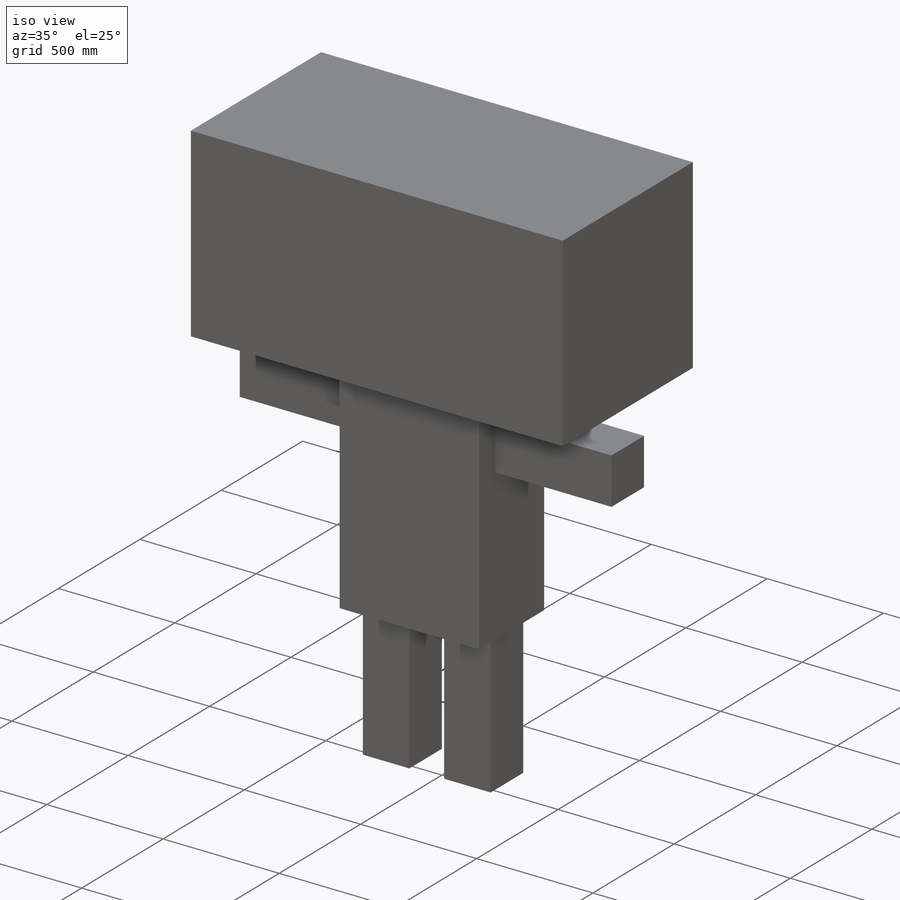
[diagram: iso view]
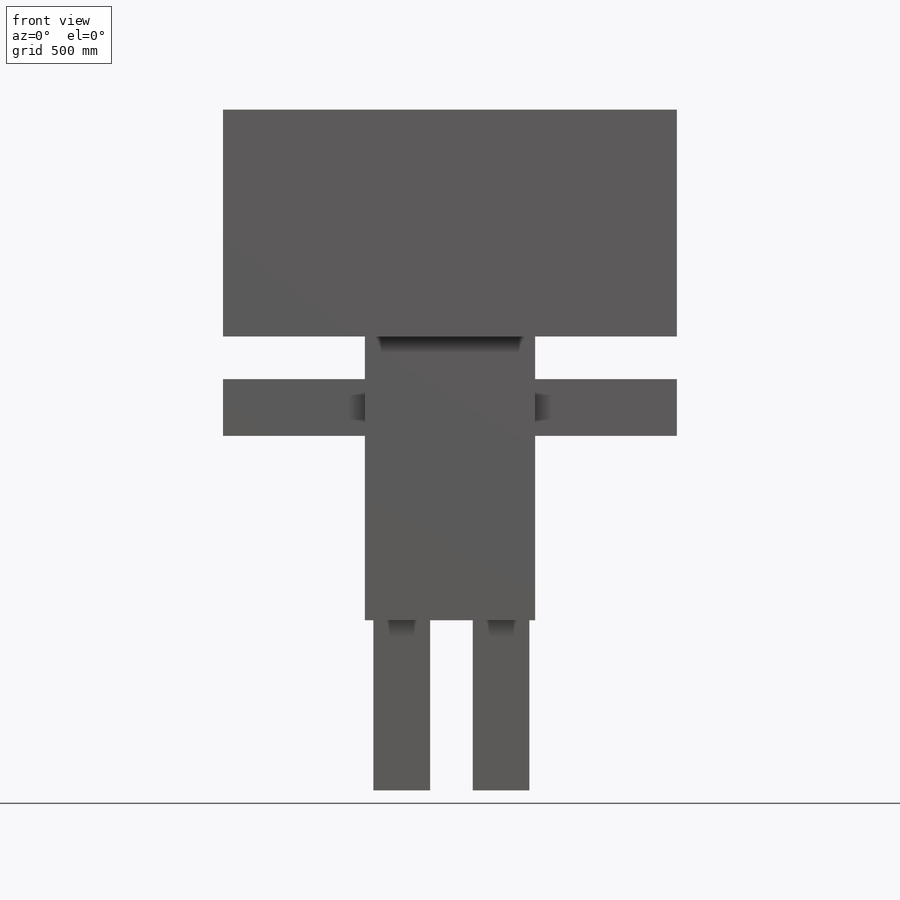
[diagram: front view]
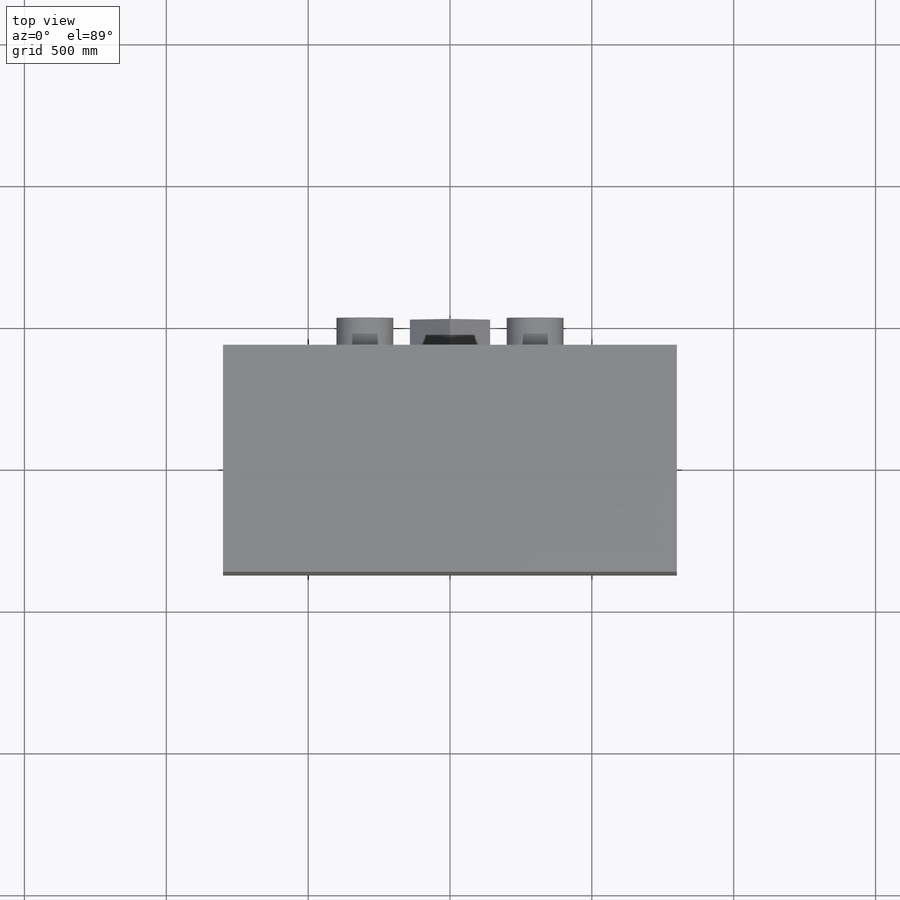
[diagram: top view]
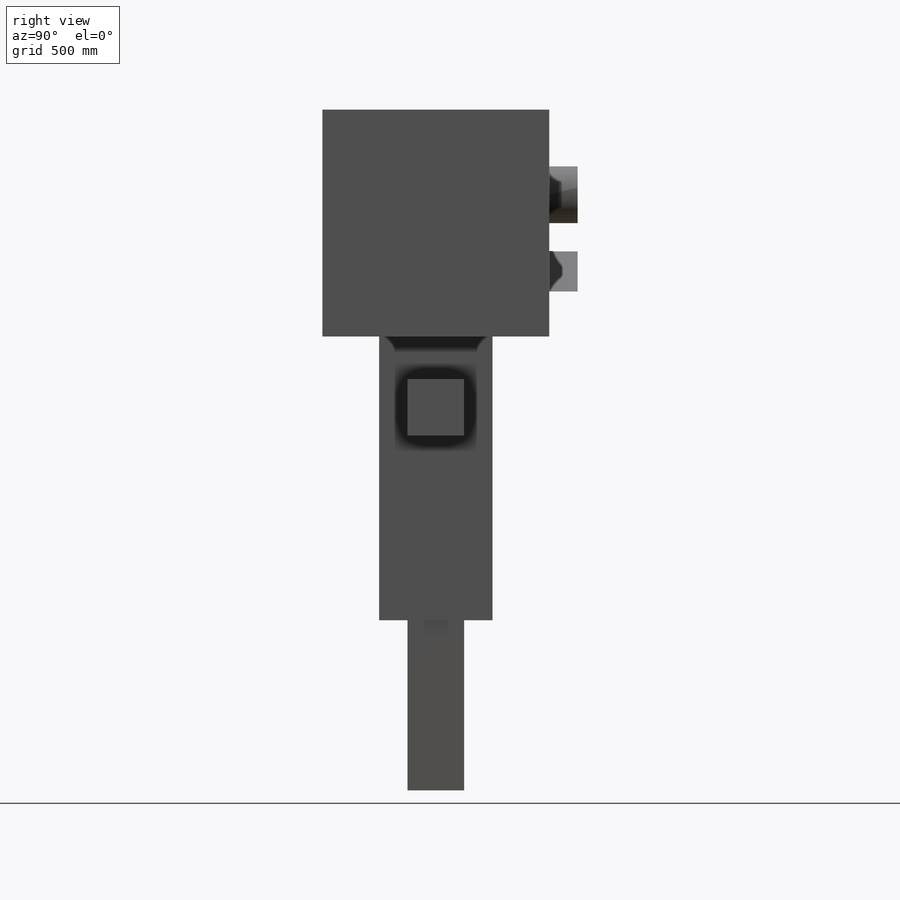
[diagram: right view]
SOLIDWORKS PART (.sldprt)
format: sldprt  version: not decoded by parser v0  size: 204,288 bytes
history: native  units: mm
features: sketch x5, extrude x5, material x1, mirror x1 (+12 scaffold rows collapsed)
feature tree (24):
  scaffold x12  (default folders/planes/origin — collapsed)
  material  "Material <not specified>"
  sketch  "Sketch1"  dims[D1=800.0mm D2=1600.0mm D3=800.0mm D4=500.0mm]
  extrude  "Boss-Extrude1"  Depth=400mm
  sketch  "Sketch2"  dims[D1=600.0mm D2=1000.0mm D3=300.0mm]
  extrude  "Boss-Extrude2"  Depth=200mm
  sketch  "Sketch3"  dims[D1=200.0mm D2=200.0mm D3=600.0mm D4=0.0mm D5=150.0mm D6=20.0mm]
  extrude  "Boss-Extrude3"  Depth=100mm
  sketch  "Sketch4"  dims[D1=0.0mm D2=0.0mm D3=150.0mm D4=200.0mm]
  extrude  "Boss-Extrude4"  Depth=500mm
  mirror  "Mirror1"
  sketch  "Sketch5"  dims[D6=200.0mm D7=200.0mm D1=200.0mm D2=200.0mm D3=0.0mm D4=600.0mm D5=300.0mm D8=500.0mm D9=500.0mm D10=300.0mm]
  extrude  "Boss-Extrude5"  Depth=100mm
decode coverage: 10 of 11 modeling features carry decoded parameters
note: suppression state not decoded; provenance and decode notes live in map.json
